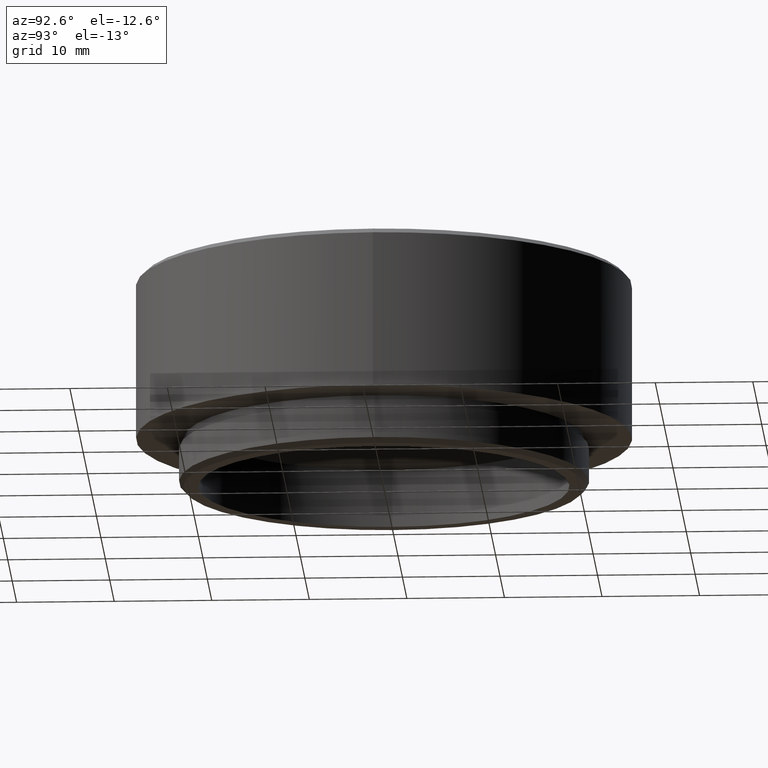
[diagram: clean part render]
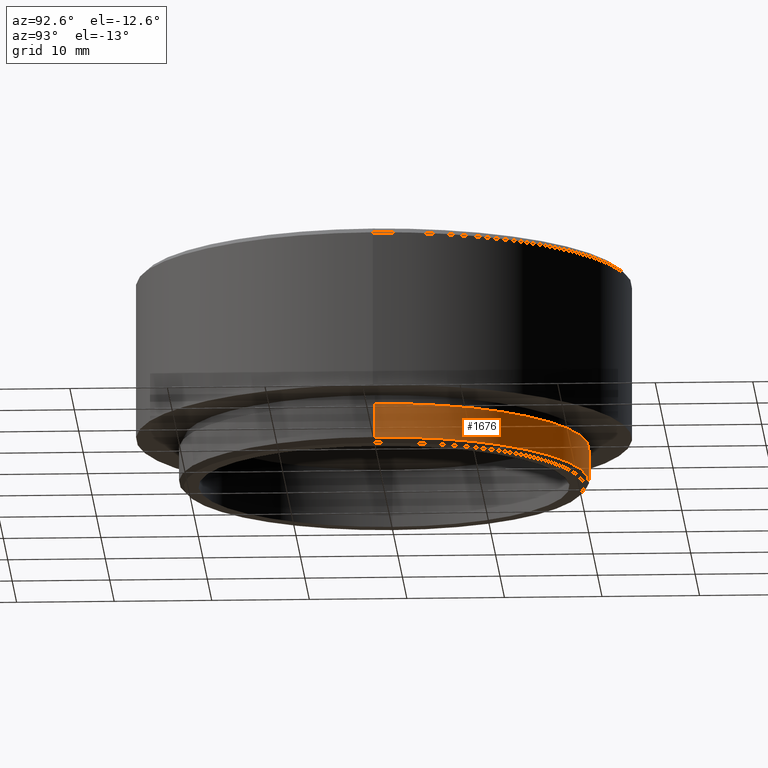
[diagram: same view with one face highlighted and labeled with its STEP entity id]
A machine part, auxiliary view. The second image highlights one B-rep face of the part: STEP entity #1676.
In plain terms, the highlighted cylindrical surface (partial cylindrical patch) has radius 21 mm, axis along (-0, -0, -1).
Its self-contained STEP definition (entity closure, byte-faithful):
#90 = DIRECTION ( 'NONE',  ( -0.000000000000000000, -0.000000000000000000, -1.000000000000000000 ) ) ;
#127 = LINE ( 'NONE', #267, #1311 ) ;
#134 = AXIS2_PLACEMENT_3D ( 'NONE', #1430, #90, #1723 ) ;
#211 = CIRCLE ( 'NONE', #1397, 21.00000000000000000 ) ;
#213 = VERTEX_POINT ( 'NONE', #246 ) ;
#246 = CARTESIAN_POINT ( 'NONE',  ( -21.00000000000000000, 0.000000000000000000, 0.4999999999999970024 ) ) ;
#267 = CARTESIAN_POINT ( 'NONE',  ( -21.00000000000000000, 0.000000000000000000, 5.000000000000000000 ) ) ;
#271 = EDGE_CURVE ( 'NONE', #277, #670, #1479, .T. ) ;
#277 = VERTEX_POINT ( 'NONE', #1191 ) ;
#309 = CARTESIAN_POINT ( 'NONE',  ( 21.00000000000000000, 2.571758278209441661E-15, 4.000000000000000000 ) ) ;
#356 = ORIENTED_EDGE ( 'NONE', *, *, #778, .T. ) ;
#427 = VECTOR ( 'NONE', #1216, 1000.000000000000000 ) ;
#654 = CARTESIAN_POINT ( 'NONE',  ( 21.00000000000000000, 2.571758278209441661E-15, 5.000000000000000000 ) ) ;
#670 = VERTEX_POINT ( 'NONE', #309 ) ;
#695 = ORIENTED_EDGE ( 'NONE', *, *, #1264, .T. ) ;
#768 = CYLINDRICAL_SURFACE ( 'NONE', #134, 21.00000000000000000 ) ;
#778 = EDGE_CURVE ( 'NONE', #900, #213, #211, .T. ) ;
#822 = DIRECTION ( 'NONE',  ( 1.000000000000000000, 0.000000000000000000, 0.000000000000000000 ) ) ;
#900 = VERTEX_POINT ( 'NONE', #1618 ) ;
#1063 = CARTESIAN_POINT ( 'NONE',  ( 0.000000000000000000, 0.000000000000000000, 4.000000000000000000 ) ) ;
#1068 = CARTESIAN_POINT ( 'NONE',  ( 0.000000000000000000, 0.000000000000000000, 0.4999999999999970024 ) ) ;
#1086 = LINE ( 'NONE', #654, #427 ) ;
#1191 = CARTESIAN_POINT ( 'NONE',  ( -21.00000000000000000, 0.000000000000000000, 4.000000000000000000 ) ) ;
#1208 = EDGE_CURVE ( 'NONE', #277, #213, #127, .T. ) ;
#1216 = DIRECTION ( 'NONE',  ( -0.000000000000000000, -0.000000000000000000, -1.000000000000000000 ) ) ;
#1264 = EDGE_CURVE ( 'NONE', #670, #900, #1086, .T. ) ;
#1290 = ORIENTED_EDGE ( 'NONE', *, *, #271, .T. ) ;
#1301 = FACE_OUTER_BOUND ( 'NONE', #1588, .T. ) ;
#1311 = VECTOR ( 'NONE', #1350, 1000.000000000000000 ) ;
#1345 = DIRECTION ( 'NONE',  ( 0.000000000000000000, 0.000000000000000000, 1.000000000000000000 ) ) ;
#1350 = DIRECTION ( 'NONE',  ( -0.000000000000000000, -0.000000000000000000, -1.000000000000000000 ) ) ;
#1364 = AXIS2_PLACEMENT_3D ( 'NONE', #1063, #1442, #1731 ) ;
#1397 = AXIS2_PLACEMENT_3D ( 'NONE', #1068, #1345, #822 ) ;
#1430 = CARTESIAN_POINT ( 'NONE',  ( 0.000000000000000000, 0.000000000000000000, 5.000000000000000000 ) ) ;
#1442 = DIRECTION ( 'NONE',  ( 0.000000000000000000, 0.000000000000000000, -1.000000000000000000 ) ) ;
#1479 = CIRCLE ( 'NONE', #1364, 21.00000000000000000 ) ;
#1588 = EDGE_LOOP ( 'NONE', ( #1290, #695, #356, #1643 ) ) ;
#1618 = CARTESIAN_POINT ( 'NONE',  ( 21.00000000000000000, 2.571758278209441661E-15, 0.4999999999999970024 ) ) ;
#1643 = ORIENTED_EDGE ( 'NONE', *, *, #1208, .F. ) ;
#1676 = ADVANCED_FACE ( 'NONE', ( #1301 ), #768, .T. ) ;
#1723 = DIRECTION ( 'NONE',  ( -1.000000000000000000, 0.000000000000000000, 0.000000000000000000 ) ) ;
#1731 = DIRECTION ( 'NONE',  ( -1.000000000000000000, 0.000000000000000000, 0.000000000000000000 ) ) ;